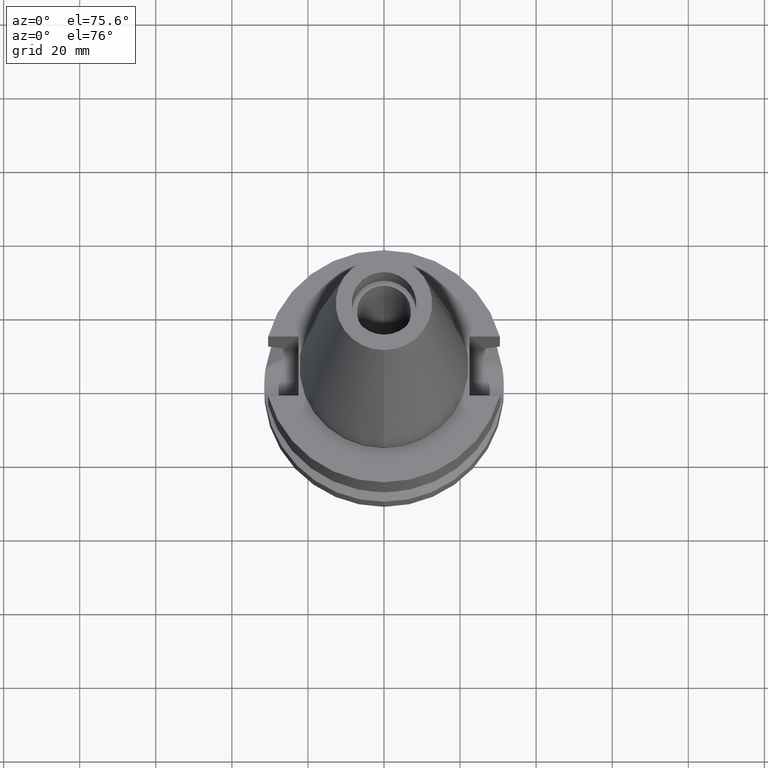
[diagram: clean part render]
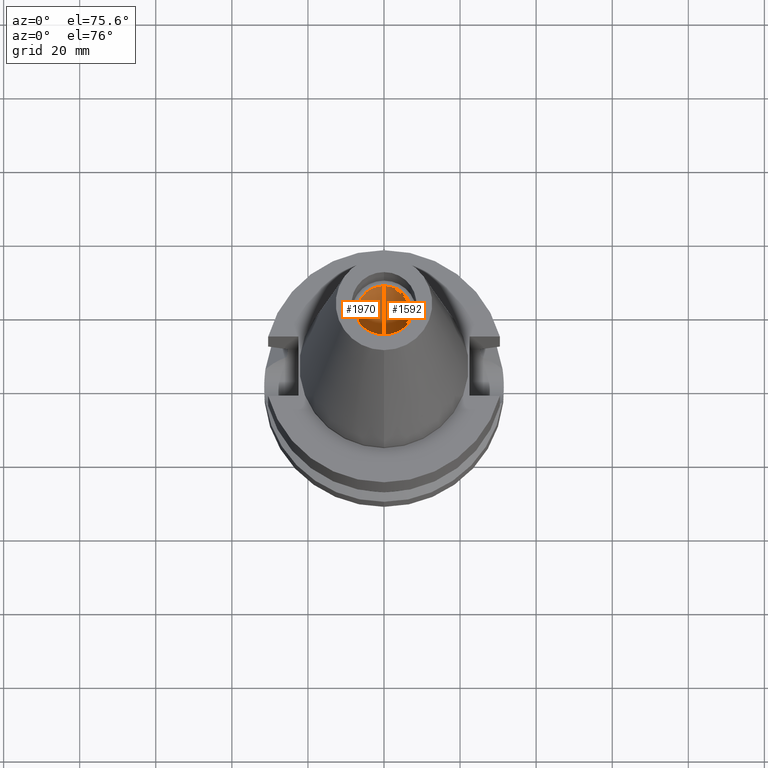
[diagram: same view with one multi-face feature highlighted, each face labeled with its STEP entity id]
A machine part, auxiliary view. The highlighted faces form ONE feature: a constant-radius fillet chain: 2 tangent blend faces with common blend radius 7.1 mm. The faces share edges in the B-rep.
Their STEP definitions:
[1] entity #1970 (Cylinder):
#143 = FACE_OUTER_BOUND ( 'NONE', #355, .T. ) ;
#155 = EDGE_CURVE ( 'NONE', #1320, #2345, #2348, .T. ) ;
#345 = DIRECTION ( 'NONE',  ( 0.0000000000000000000, -1.000000000000000000, 0.0000000000000000000 ) ) ;
#355 = EDGE_LOOP ( 'NONE', ( #591, #2544, #2891, #1078 ) ) ;
#365 = CARTESIAN_POINT ( 'NONE',  ( 0.0000000000000000000, -7.100000000000000533, 1.563194018672000033E-13 ) ) ;
#471 = CARTESIAN_POINT ( 'NONE',  ( 0.0000000000000000000, -7.100000000000000533, 1.563194018672000033E-13 ) ) ;
#510 = VERTEX_POINT ( 'NONE', #365 ) ;
#530 = LINE ( 'NONE', #1126, #2542 ) ;
#591 = ORIENTED_EDGE ( 'NONE', *, *, #155, .T. ) ;
#643 = CARTESIAN_POINT ( 'NONE',  ( 0.0000000000000000000, 2.127456419478999887E-14, 73.71999999999999886 ) ) ;
#712 = DIRECTION ( 'NONE',  ( 0.0000000000000000000, 0.0000000000000000000, 1.000000000000000000 ) ) ;
#811 = CYLINDRICAL_SURFACE ( 'NONE', #1043, 7.100000000000000533 ) ;
#825 = EDGE_CURVE ( 'NONE', #1243, #1320, #530, .T. ) ;
#1043 = AXIS2_PLACEMENT_3D ( 'NONE', #643, #1782, #345 ) ;
#1078 = ORIENTED_EDGE ( 'NONE', *, *, #825, .T. ) ;
#1126 = CARTESIAN_POINT ( 'NONE',  ( 0.0000000000000000000, 7.100000000000000533, 1.563194018672000033E-13 ) ) ;
#1135 = LINE ( 'NONE', #471, #2044 ) ;
#1162 = CARTESIAN_POINT ( 'NONE',  ( 0.0000000000000000000, 7.100000000000000533, 1.563194018672000033E-13 ) ) ;
#1243 = VERTEX_POINT ( 'NONE', #1162 ) ;
#1320 = VERTEX_POINT ( 'NONE', #2902 ) ;
#1463 = CIRCLE ( 'NONE', #2620, 7.100000000000000533 ) ;
#1634 = CARTESIAN_POINT ( 'NONE',  ( 0.0000000000000000000, -7.100000000000000533, 56.39999999999999858 ) ) ;
#1730 = CARTESIAN_POINT ( 'NONE',  ( 0.0000000000000000000, 2.127456419478999887E-14, 56.39999999999999858 ) ) ;
#1782 = DIRECTION ( 'NONE',  ( 0.0000000000000000000, 0.0000000000000000000, -1.000000000000000000 ) ) ;
#1924 = DIRECTION ( 'NONE',  ( 0.0000000000000000000, 0.0000000000000000000, 1.000000000000000000 ) ) ;
#1970 = ADVANCED_FACE ( 'NONE', ( #143 ), #811, .F. ) ;
#2044 = VECTOR ( 'NONE', #2474, 1000.000000000000000 ) ;
#2098 = AXIS2_PLACEMENT_3D ( 'NONE', #1730, #1924, #2848 ) ;
#2131 = EDGE_CURVE ( 'NONE', #510, #2345, #1135, .T. ) ;
#2209 = DIRECTION ( 'NONE',  ( 0.0000000000000000000, -1.000000000000000000, 0.0000000000000000000 ) ) ;
#2345 = VERTEX_POINT ( 'NONE', #1634 ) ;
#2348 = CIRCLE ( 'NONE', #2098, 7.100000000000000533 ) ;
#2374 = DIRECTION ( 'NONE',  ( 0.0000000000000000000, 0.0000000000000000000, -1.000000000000000000 ) ) ;
#2474 = DIRECTION ( 'NONE',  ( 0.0000000000000000000, 0.0000000000000000000, 1.000000000000000000 ) ) ;
#2542 = VECTOR ( 'NONE', #712, 1000.000000000000000 ) ;
#2544 = ORIENTED_EDGE ( 'NONE', *, *, #2131, .F. ) ;
#2620 = AXIS2_PLACEMENT_3D ( 'NONE', #2906, #2374, #2209 ) ;
#2848 = DIRECTION ( 'NONE',  ( 0.0000000000000000000, 1.000000000000000000, 0.0000000000000000000 ) ) ;
#2891 = ORIENTED_EDGE ( 'NONE', *, *, #2977, .T. ) ;
#2902 = CARTESIAN_POINT ( 'NONE',  ( 0.0000000000000000000, 7.100000000000000533, 56.39999999999999858 ) ) ;
#2906 = CARTESIAN_POINT ( 'NONE',  ( 0.0000000000000000000, 2.127456419478999887E-14, 1.705302565823999875E-13 ) ) ;
#2977 = EDGE_CURVE ( 'NONE', #510, #1243, #1463, .T. ) ;
[2] entity #1592 (Cylinder):
#365 = CARTESIAN_POINT ( 'NONE',  ( 0.0000000000000000000, -7.100000000000000533, 1.563194018672000033E-13 ) ) ;
#465 = DIRECTION ( 'NONE',  ( 0.0000000000000000000, 0.0000000000000000000, 1.000000000000000000 ) ) ;
#471 = CARTESIAN_POINT ( 'NONE',  ( 0.0000000000000000000, -7.100000000000000533, 1.563194018672000033E-13 ) ) ;
#489 = CARTESIAN_POINT ( 'NONE',  ( 0.0000000000000000000, 2.127456419478999887E-14, 73.71999999999999886 ) ) ;
#510 = VERTEX_POINT ( 'NONE', #365 ) ;
#513 = DIRECTION ( 'NONE',  ( 0.0000000000000000000, -1.000000000000000000, 0.0000000000000000000 ) ) ;
#530 = LINE ( 'NONE', #1126, #2542 ) ;
#712 = DIRECTION ( 'NONE',  ( 0.0000000000000000000, 0.0000000000000000000, 1.000000000000000000 ) ) ;
#737 = DIRECTION ( 'NONE',  ( 0.0000000000000000000, 0.0000000000000000000, 1.000000000000000000 ) ) ;
#825 = EDGE_CURVE ( 'NONE', #1243, #1320, #530, .T. ) ;
#880 = ORIENTED_EDGE ( 'NONE', *, *, #2131, .T. ) ;
#997 = AXIS2_PLACEMENT_3D ( 'NONE', #1217, #737, #513 ) ;
#1112 = ORIENTED_EDGE ( 'NONE', *, *, #825, .F. ) ;
#1126 = CARTESIAN_POINT ( 'NONE',  ( 0.0000000000000000000, 7.100000000000000533, 1.563194018672000033E-13 ) ) ;
#1135 = LINE ( 'NONE', #471, #2044 ) ;
#1145 = AXIS2_PLACEMENT_3D ( 'NONE', #1391, #465, #1607 ) ;
#1155 = AXIS2_PLACEMENT_3D ( 'NONE', #489, #2036, #2964 ) ;
#1162 = CARTESIAN_POINT ( 'NONE',  ( 0.0000000000000000000, 7.100000000000000533, 1.563194018672000033E-13 ) ) ;
#1217 = CARTESIAN_POINT ( 'NONE',  ( 0.0000000000000000000, 2.127456419478999887E-14, 56.39999999999999858 ) ) ;
#1243 = VERTEX_POINT ( 'NONE', #1162 ) ;
#1283 = ORIENTED_EDGE ( 'NONE', *, *, #1538, .F. ) ;
#1320 = VERTEX_POINT ( 'NONE', #2902 ) ;
#1354 = ORIENTED_EDGE ( 'NONE', *, *, #2338, .T. ) ;
#1391 = CARTESIAN_POINT ( 'NONE',  ( 0.0000000000000000000, 2.127456419478999887E-14, 1.705302565823999875E-13 ) ) ;
#1538 = EDGE_CURVE ( 'NONE', #510, #1243, #1958, .T. ) ;
#1592 = ADVANCED_FACE ( 'NONE', ( #1813 ), #1850, .F. ) ;
#1607 = DIRECTION ( 'NONE',  ( 0.0000000000000000000, -1.000000000000000000, 0.0000000000000000000 ) ) ;
#1634 = CARTESIAN_POINT ( 'NONE',  ( 0.0000000000000000000, -7.100000000000000533, 56.39999999999999858 ) ) ;
#1813 = FACE_OUTER_BOUND ( 'NONE', #2218, .T. ) ;
#1850 = CYLINDRICAL_SURFACE ( 'NONE', #1155, 7.100000000000000533 ) ;
#1958 = CIRCLE ( 'NONE', #1145, 7.100000000000000533 ) ;
#2036 = DIRECTION ( 'NONE',  ( 0.0000000000000000000, 0.0000000000000000000, -1.000000000000000000 ) ) ;
#2044 = VECTOR ( 'NONE', #2474, 1000.000000000000000 ) ;
#2131 = EDGE_CURVE ( 'NONE', #510, #2345, #1135, .T. ) ;
#2218 = EDGE_LOOP ( 'NONE', ( #1283, #880, #1354, #1112 ) ) ;
#2338 = EDGE_CURVE ( 'NONE', #2345, #1320, #2588, .T. ) ;
#2345 = VERTEX_POINT ( 'NONE', #1634 ) ;
#2474 = DIRECTION ( 'NONE',  ( 0.0000000000000000000, 0.0000000000000000000, 1.000000000000000000 ) ) ;
#2542 = VECTOR ( 'NONE', #712, 1000.000000000000000 ) ;
#2588 = CIRCLE ( 'NONE', #997, 7.100000000000000533 ) ;
#2902 = CARTESIAN_POINT ( 'NONE',  ( 0.0000000000000000000, 7.100000000000000533, 56.39999999999999858 ) ) ;
#2964 = DIRECTION ( 'NONE',  ( 0.0000000000000000000, -1.000000000000000000, 0.0000000000000000000 ) ) ;